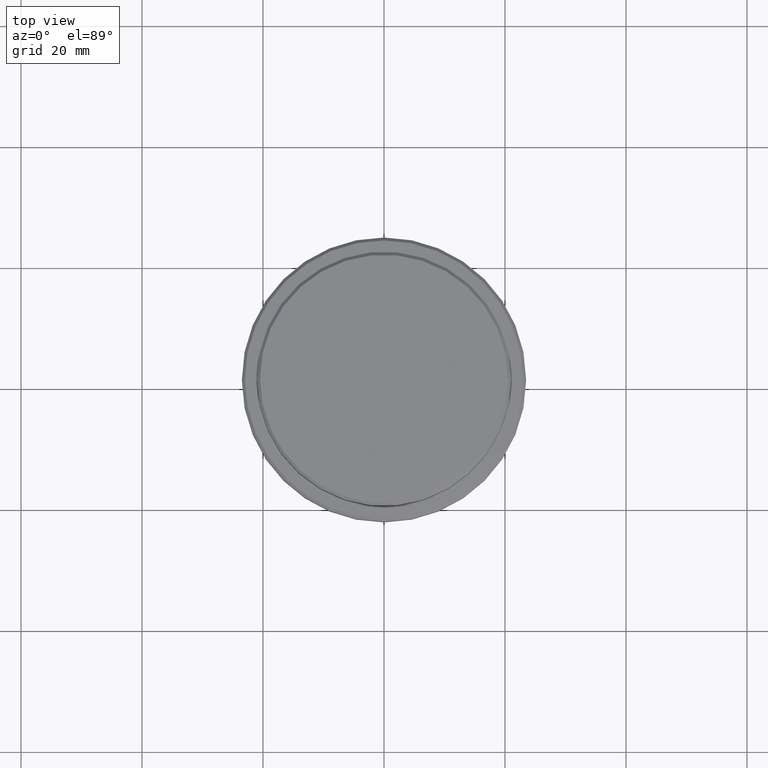
[diagram: clean part render]
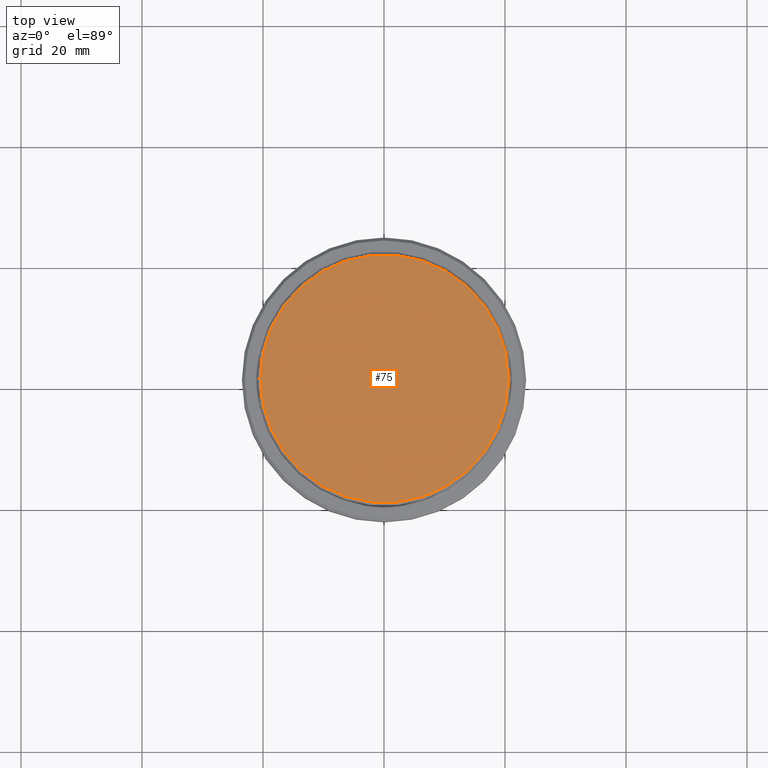
[diagram: same view with one face highlighted and labeled with its STEP entity id]
A machine part, top view. The second image highlights one B-rep face of the part: STEP entity #75.
In plain terms, the highlighted planar face has unit normal (0, -0, 1).
Its self-contained STEP definition (entity closure, byte-faithful):
#75 = ADVANCED_FACE ( 'NONE', ( #803 ), #130, .T. ) ;
#117 = CARTESIAN_POINT ( 'NONE',  ( 0.000000000000000000, 0.000000000000000000, 0.000000000000000000 ) ) ;
#125 = ORIENTED_EDGE ( 'NONE', *, *, #381, .T. ) ;
#130 = PLANE ( 'NONE',  #817 ) ;
#212 = AXIS2_PLACEMENT_3D ( 'NONE', #117, #1123, #1128 ) ;
#365 = DIRECTION ( 'NONE',  ( 0.000000000000000000, -0.000000000000000000, 1.000000000000000000 ) ) ;
#381 = EDGE_CURVE ( 'NONE', #782, #1231, #626, .T. ) ;
#442 = DIRECTION ( 'NONE',  ( -0.000000000000000000, -0.000000000000000000, 1.000000000000000000 ) ) ;
#543 = ORIENTED_EDGE ( 'NONE', *, *, #767, .T. ) ;
#566 = DIRECTION ( 'NONE',  ( 1.000000000000000000, 0.000000000000000000, 0.000000000000000000 ) ) ;
#626 = CIRCLE ( 'NONE', #1358, 20.49999999999997513 ) ;
#627 = CIRCLE ( 'NONE', #212, 20.49999999999997513 ) ;
#767 = EDGE_CURVE ( 'NONE', #1231, #782, #627, .T. ) ;
#782 = VERTEX_POINT ( 'NONE', #907 ) ;
#803 = FACE_OUTER_BOUND ( 'NONE', #1412, .T. ) ;
#817 = AXIS2_PLACEMENT_3D ( 'NONE', #929, #365, #566 ) ;
#884 = CARTESIAN_POINT ( 'NONE',  ( 20.49999999999997513, 2.541142108230756691E-15, 0.000000000000000000 ) ) ;
#907 = CARTESIAN_POINT ( 'NONE',  ( -20.49999999999997513, 0.000000000000000000, 0.000000000000000000 ) ) ;
#929 = CARTESIAN_POINT ( 'NONE',  ( 0.000000000000000000, 0.000000000000000000, 0.000000000000000000 ) ) ;
#1123 = DIRECTION ( 'NONE',  ( -0.000000000000000000, -0.000000000000000000, 1.000000000000000000 ) ) ;
#1128 = DIRECTION ( 'NONE',  ( 1.000000000000000000, 0.000000000000000000, 0.000000000000000000 ) ) ;
#1130 = CARTESIAN_POINT ( 'NONE',  ( 0.000000000000000000, 0.000000000000000000, 0.000000000000000000 ) ) ;
#1231 = VERTEX_POINT ( 'NONE', #884 ) ;
#1320 = DIRECTION ( 'NONE',  ( 1.000000000000000000, 0.000000000000000000, 0.000000000000000000 ) ) ;
#1358 = AXIS2_PLACEMENT_3D ( 'NONE', #1130, #442, #1320 ) ;
#1412 = EDGE_LOOP ( 'NONE', ( #125, #543 ) ) ;